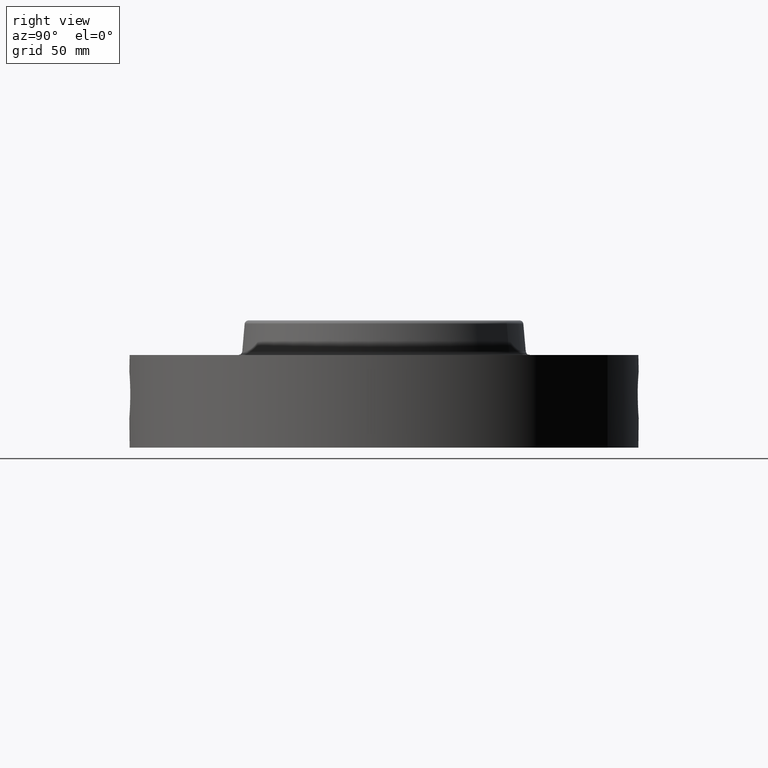
[diagram: clean part render]
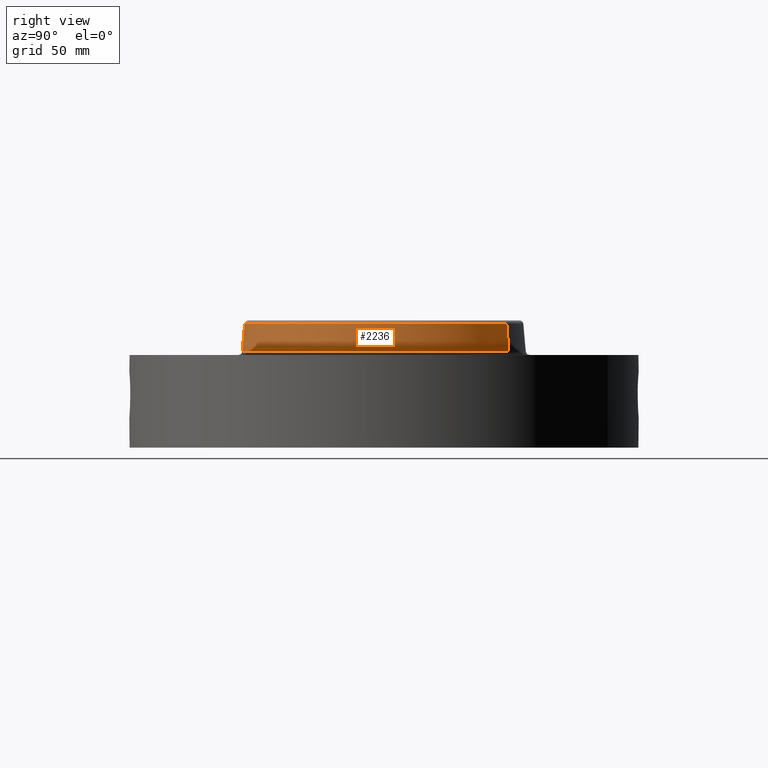
[diagram: same view with one face highlighted and labeled with its STEP entity id]
A machine part, right view. The second image highlights one B-rep face of the part: STEP entity #2236.
In plain terms, the highlighted conical surface has half-angle 5 deg.
Its self-contained STEP definition (entity closure, byte-faithful):
#1143=AXIS2_PLACEMENT_3D('Circle Axis2P3D',#1141,#1142,$) ;
#2197=AXIS2_PLACEMENT_3D('Cone Axis2P3D',#2194,#2195,#2196) ;
#2227=AXIS2_PLACEMENT_3D('Circle Axis2P3D',#2225,#2226,$) ;
#1119=CARTESIAN_POINT('Vertex',(-1.08628150317,-1.98842495387,2.06522934457)) ;
#1121=CARTESIAN_POINT('Vertex',(1.08628150317,1.98842495387,2.06522934457)) ;
#1141=CARTESIAN_POINT('Axis2P3D Location',(0.,0.,2.06522934457)) ;
#2194=CARTESIAN_POINT('Axis2P3D Location',(0.,0.,2.06522934457)) ;
#2203=CARTESIAN_POINT('Vertex',(-1.1051756774,-2.02301050781,1.61477065544)) ;
#2205=CARTESIAN_POINT('Vertex',(1.1051756774,2.02301050781,1.61477065544)) ;
#2208=CARTESIAN_POINT('Line Origine',(-1.09572859028,-2.00571773084,1.84000000001)) ;
#2213=CARTESIAN_POINT('Line Origine',(1.09572859028,2.00571773084,1.84000000001)) ;
#2225=CARTESIAN_POINT('Axis2P3D Location',(0.,0.,1.61477065544)) ;
#1142=DIRECTION('Axis2P3D Direction',(0.,0.,-0.0393700787402)) ;
#2195=DIRECTION('Axis2P3D Direction',(0.,0.,-0.0393700787402)) ;
#2196=DIRECTION('Axis2P3D XDirection',(0.0188750212049,0.0345504945626,0.)) ;
#2209=DIRECTION('Vector Direction',(-0.00164506649249,-0.0030112740159,-0.0392202637044)) ;
#2214=DIRECTION('Vector Direction',(0.00164506649249,0.0030112740159,-0.0392202637044)) ;
#2226=DIRECTION('Axis2P3D Direction',(0.,0.,-0.0393700787402)) ;
#2210=VECTOR('Line Direction',#2209,0.0393700787402) ;
#2215=VECTOR('Line Direction',#2214,0.0393700787402) ;
#2231=ORIENTED_EDGE('',*,*,#2229,.F.) ;
#2232=ORIENTED_EDGE('',*,*,#2217,.T.) ;
#2233=ORIENTED_EDGE('',*,*,#1145,.T.) ;
#2234=ORIENTED_EDGE('',*,*,#2212,.F.) ;
#2236=ADVANCED_FACE('PartBody',(#2235),#2198,.T.) ;
#1144=CIRCLE('generated circle',#1143,2.26579815988) ;
#2228=CIRCLE('generated circle',#2227,2.30520818856) ;
#2198=CONICAL_SURFACE('Cone',#2197,2.26579815988,0.0872664625997) ;
#1145=EDGE_CURVE('',#1122,#1120,#1144,.T.) ;
#2212=EDGE_CURVE('',#2204,#1120,#2211,.F.) ;
#2217=EDGE_CURVE('',#2206,#1122,#2216,.F.) ;
#2229=EDGE_CURVE('',#2206,#2204,#2228,.T.) ;
#2230=EDGE_LOOP('',(#2231,#2232,#2233,#2234)) ;
#2235=FACE_OUTER_BOUND('',#2230,.T.) ;
#2211=LINE('Line',#2208,#2210) ;
#2216=LINE('Line',#2213,#2215) ;
#1120=VERTEX_POINT('',#1119) ;
#1122=VERTEX_POINT('',#1121) ;
#2204=VERTEX_POINT('',#2203) ;
#2206=VERTEX_POINT('',#2205) ;